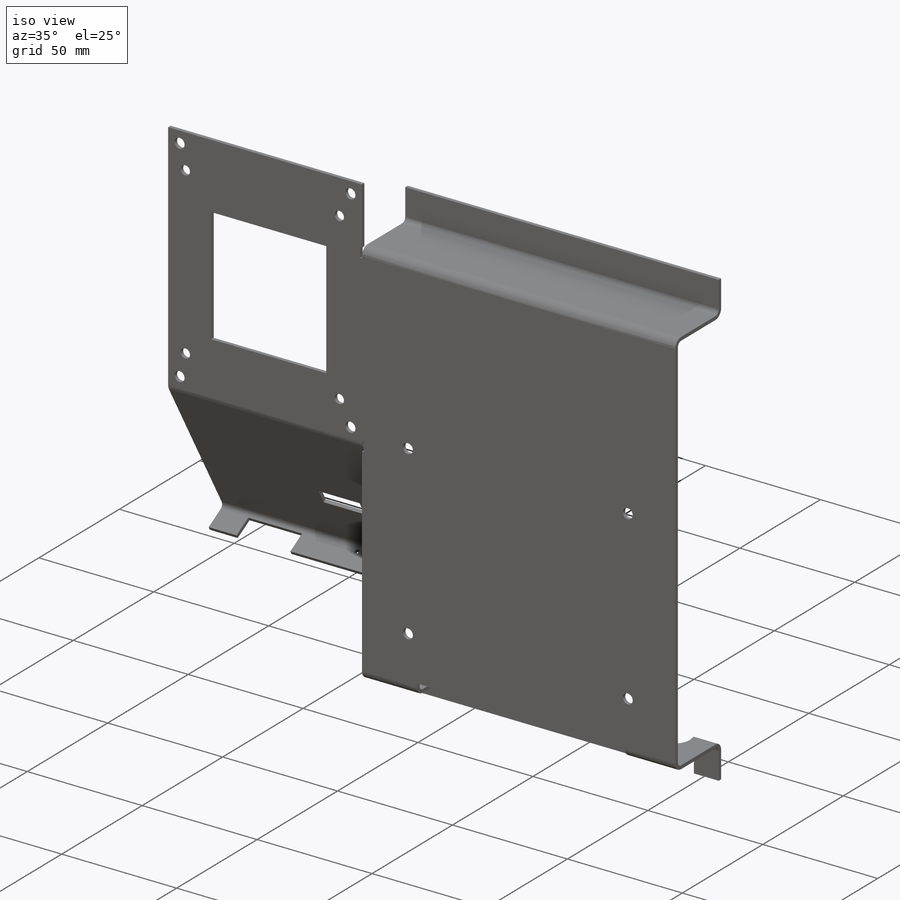
[diagram: iso view]
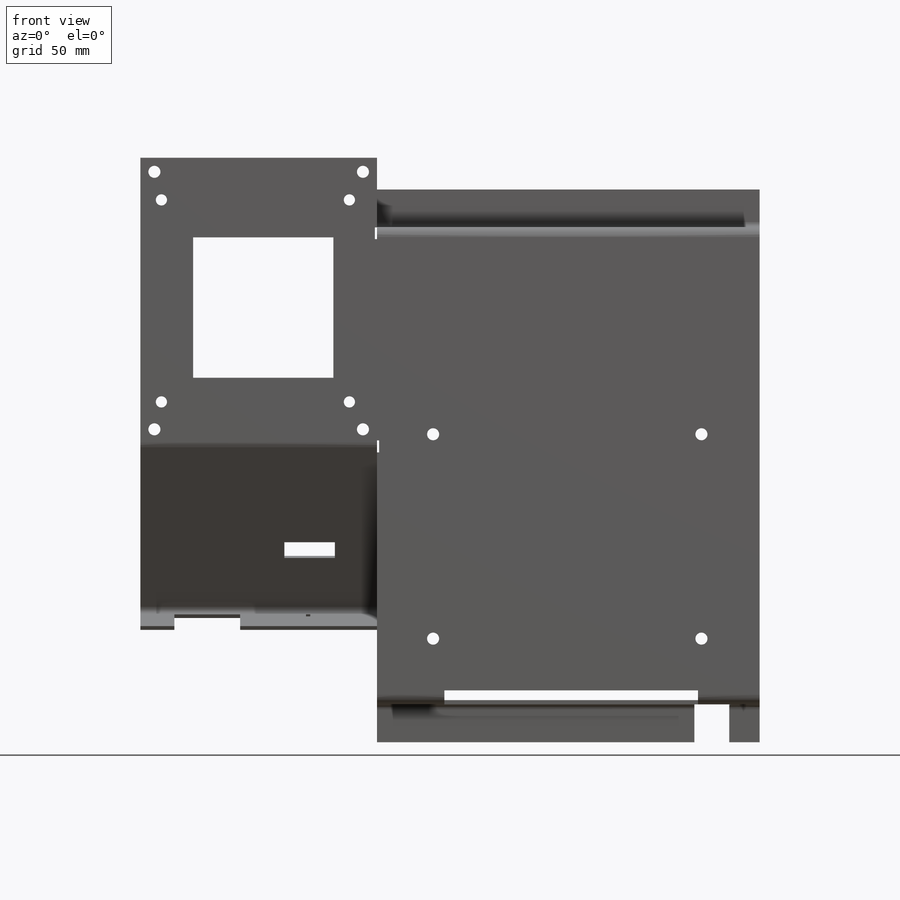
[diagram: front view]
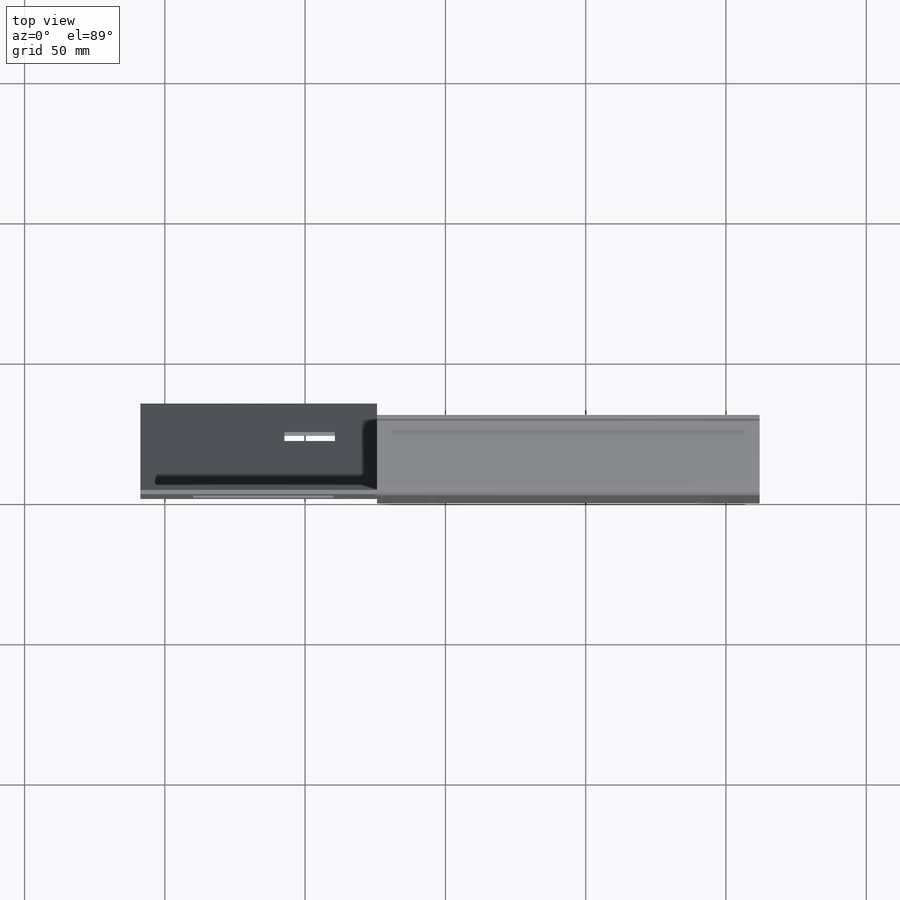
[diagram: top view]
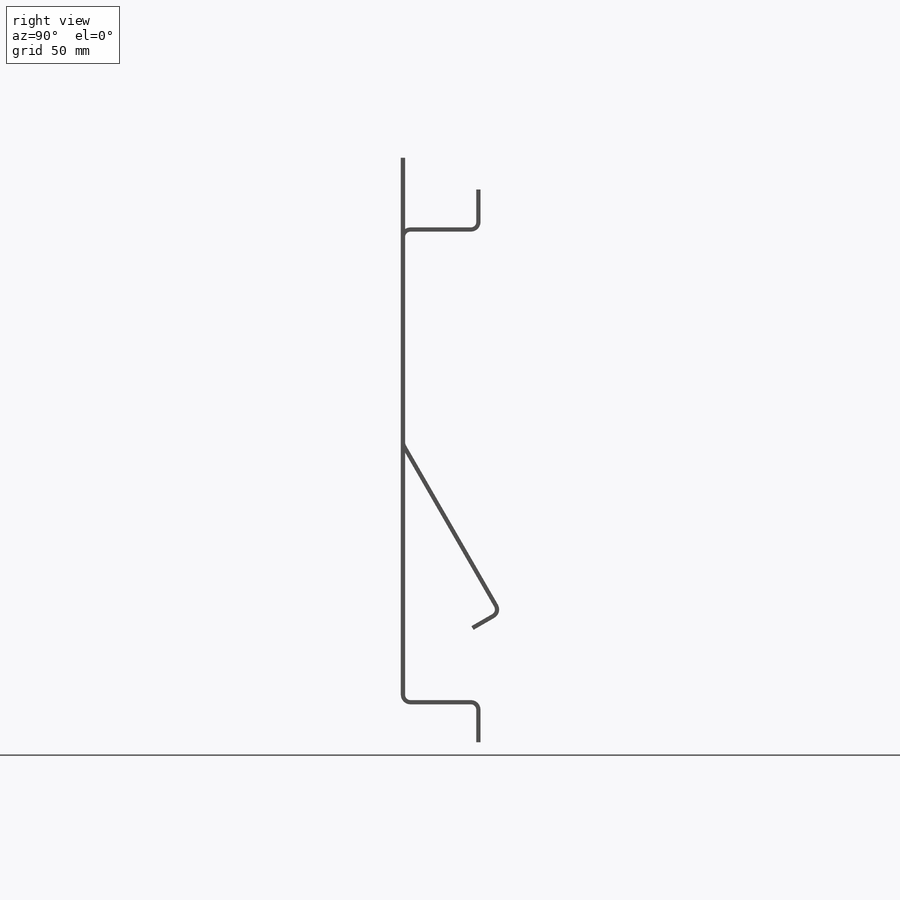
[diagram: right view]
SOLIDWORKS PART (.sldprt)
format: sldprt  version: not decoded by parser v0  size: 708,608 bytes
history: native  units: mm
features: sketch x53, sheet_metal_op x24, cut_extrude x9, material x1 + 16 further entries (+13 scaffold rows collapsed; 16 parser-record rows omitted)
feature tree (132):
  scaffold x13  (default folders/planes/origin — collapsed)
  material  "Material <not specified>"
  sketch  "Sketch1"  dims[c1.D1=220.0mm c1.D2=105.0mm c2.D1=170.0mm c3.D1=1.905mm c3.D2=0.5 c3.D3=0.0mm c3.D6=500.0mm]
  sheet_metal_op  "Base-Flange1"
  sketch  "Sketch19"  dims[c1.D1=1.905mm c1.D4=30.0deg c1.D5=1.0 c1.D8=~0.60706mm c1.D9=~0.60706mm c2.D1=2.54mm c2.D2=500.0mm c2.D3=0.0mm c2.D6=10.0mm c2.D7=70.0mm c2.Edge-Flange5=0.0]
  sketch  "Sketch22"
  sheet_metal_op  "EdgeBend5"
  sketch  "Sketch27"
  cut_extrude  "Cut-Extrude2"  Depth=10mm Edge-Flange7=0
  sketch  "Sketch32"
  sketch  "Sketch33"
  sheet_metal_op  "EdgeBend7"
  sheet_metal_op  "EdgeBend8"  Edge-Flange8=0
  sketch  "Sketch39"
  sketch  "Sketch49"
  sheet_metal_op  "EdgeBend10"
  sheet_metal_op  "EdgeBend11"
  sketch  "Sketch40"  dims[D1=4.0mm]
  cut_extrude  "Cut-Extrude3"  Depth=10mm
  sketch  "Sketch41"  dims[D1=50.0mm D2=50.0mm]
  cut_extrude  "Cut-Extrude4"  Depth=10mm
  sketch  "Sketch42"  dims[D1=4.3mm D2=5.0mm D3=5.0mm D4=5.0mm]
  cut_extrude  "Cut-Extrude5"  Depth=10mm
  sketch  "Sketch43"  dims[D1=4.3mm D2=55.0mm D3=20.0mm D4=75.0mm D5=75.0mm]
  cut_extrude  "Cut-Extrude6"  Depth=10mm
  sketch  "Sketch45"  dims[D1=18.0mm D2=6.5mm D3=22.0mm D4=15.0mm]
  cut_extrude  "Cut-Extrude8"  Depth=10mm
  sketch  "Sketch46"  dims[c1.D1=1.5mm c1.D2=1.5mm c1.D3=~1.194508mm c2.D3=~113.460728deg]
  cut_extrude  "Cut-Extrude9"  Depth=10mm Edge-Flange10=0
  sketch  "Sketch58"  dims[D1=3.0mm]
  sheet_metal_op  "EdgeBend13"  Edge-Flange11=0
  sketch  "Sketch61"
  sheet_metal_op  "EdgeBend14"
  sketch  "Sketch62"
  cut_extrude  "Cut-Extrude12"  Depth=3mm
  sketch  "Sketch63"
  sketch  "Sketch64"  dims[D1=4.08mm]
  cut_extrude  "Cut-Extrude14"  Depth=3mm
  sketch  "Bend-Lines1"
  sketch  "Bounding-Box1"
  sheet_metal_op  "Sheet-Metal1"
  "Flat-Pattern1"
  sketch  "Bend-Lines2"
  sketch  "Bounding-Box2"
  parser-record x16  (decoder bookkeeping rows leaked as tree rows — omitted from the tree; the rows remain in map.json)
  sheet_metal_op  "Sheet-Metal5"
  "Flat-Pattern1"
  sketch  "Bend-Lines2"
  sketch  "Bounding-Box2"
  sheet_metal_op  "Sheet-Metal6"
  "Flat-Pattern1"
  sketch  "Bend-Lines2"
  sketch  "Bounding-Box2"
  sheet_metal_op  "Sheet-Metal9"
  "Flat-Pattern1"
  sketch  "Bend-Lines2"
  sketch  "Bounding-Box2"
  sheet_metal_op  "Sheet-Metal10"
  "Flat-Pattern1"
  sketch  "Bend-Lines2"
  sketch  "Bounding-Box2"
  sheet_metal_op  "Sheet-Metal11"
  "Flat-Pattern1"
  sketch  "Bend-Lines2"
  sketch  "Bounding-Box2"
  sheet_metal_op  "Sheet-Metal12"
  "Flat-Pattern1"
  sketch  "Bend-Lines2"
  sketch  "Bounding-Box2"
  sheet_metal_op  "Sheet-Metal13"
  "Flat-Pattern1"
  sketch  "Bend-Lines2"
  sketch  "Bounding-Box2"
  sheet_metal_op  "Sheet-Metal14"
  "Flat-Pattern1"
  sketch  "Bend-Lines2"
  sketch  "Bounding-Box2"
  sheet_metal_op  "Sheet-Metal15"
  "Flat-Pattern1"
  sketch  "Bend-Lines2"
  sketch  "Bounding-Box2"
  sheet_metal_op  "Sheet-Metal17"
  "Flat-Pattern1"
  sketch  "Bend-Lines2"
  sketch  "Bounding-Box2"
  sheet_metal_op  "Sheet-Metal18"
  "Flat-Pattern1"
  sketch  "Bend-Lines2"
  sketch  "Bounding-Box2"
  sheet_metal_op  "Sheet-Metal22"
  "Flat-Pattern1"
  sketch  "Bend-Lines2"
  sketch  "Bounding-Box2"
  sheet_metal_op  "Sheet-Metal23"
  "Flat-Pattern1"
  sketch  "Bend-Lines2"
  sketch  "Bounding-Box2"
  sheet_metal_op  "Sheet-Metal24"
  "Flat-Pattern1"
  sketch  "Bend-Lines2"
  sketch  "Bounding-Box2"
  sheet_metal_op  "Sheet-Metal25"
  "Flat-Pattern1"
  sketch  "Bend-Lines2"
  sketch  "Bounding-Box2"
decode coverage: 21 of 86 modeling features carry decoded parameters; 16 rows unclassified (native names shown)
note: ~ marks probable driven/reference dimensions
note: suppression state not decoded; provenance and decode notes live in map.json
